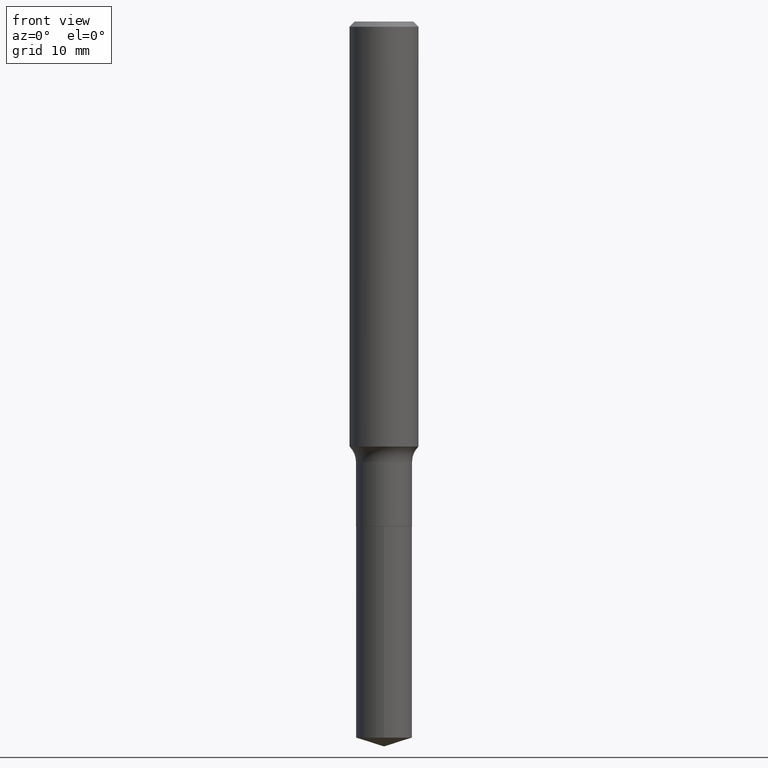
[diagram: clean part render]
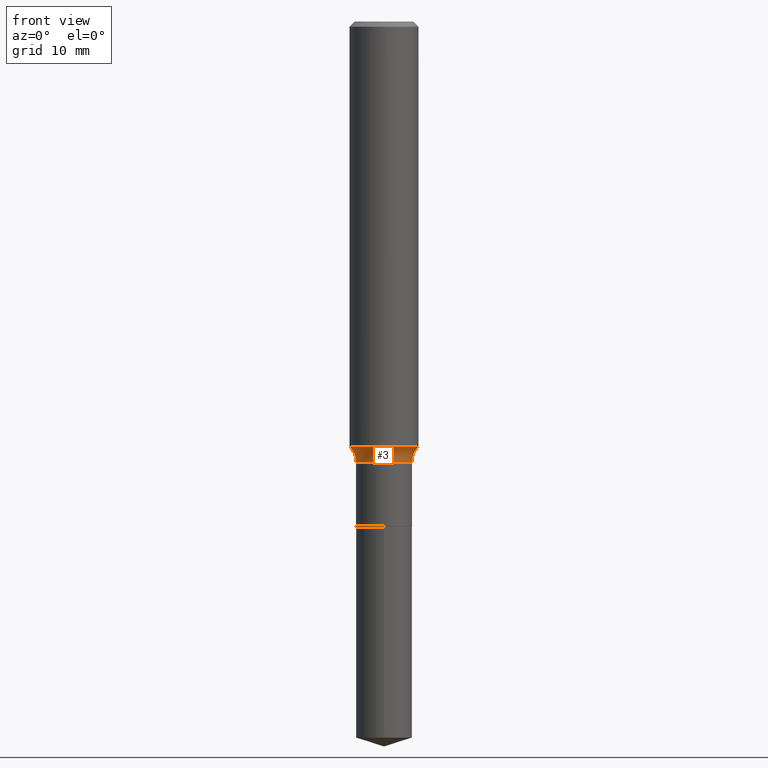
[diagram: same view with one face highlighted and labeled with its STEP entity id]
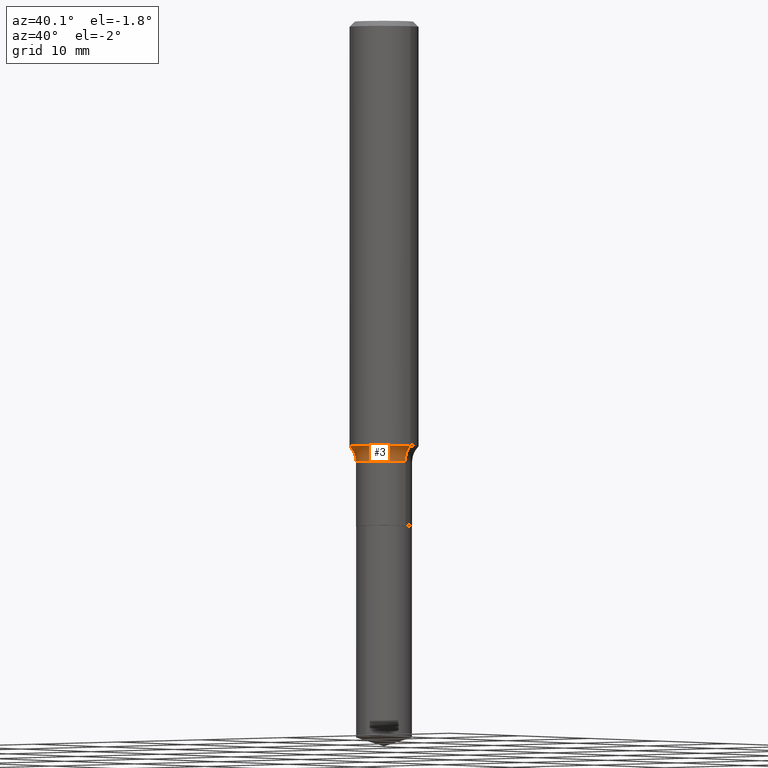
[diagram: same view with one face highlighted and labeled with its STEP entity id]
A machine part, front view. The second image highlights one B-rep face of the part: STEP entity #3.
A second angle (auxiliary view) of the same face is appended — the face is thin or edge-on in the first view.
In plain terms, the highlighted toroidal blend (fillet) surface has major radius 4.5606 mm and minor (blend) radius 1.9812 mm.
Its self-contained STEP definition (entity closure, byte-faithful):
#3 = ADVANCED_FACE ( 'NONE', ( #295 ), #405, .F. ) ;
#8 = DIRECTION ( 'NONE',  ( 1.000000000000000000, -6.982962677686267499E-15, 0.000000000000000000 ) ) ;
#16 = DIRECTION ( 'NONE',  ( 1.000000000000000000, -6.982962677686270655E-15, 0.000000000000000000 ) ) ;
#33 = CARTESIAN_POINT ( 'NONE',  ( -0.1795499999999999596, -4.291387512728136757E-15, -1.594500000000000250 ) ) ;
#58 = DIRECTION ( 'NONE',  ( -2.445468806185136597E-29, 3.491481338843145583E-15, 1.000000000000000000 ) ) ;
#65 = AXIS2_PLACEMENT_3D ( 'NONE', #33, #451, #179 ) ;
#66 = CARTESIAN_POINT ( 'NONE',  ( -0.1250000000000002220, -4.484331131856369405E-15, -1.538747892416519214 ) ) ;
#85 = ORIENTED_EDGE ( 'NONE', *, *, #138, .T. ) ;
#87 = CARTESIAN_POINT ( 'NONE',  ( 0.1015499999999999736, -6.276286854704436544E-15, -1.594500000000000250 ) ) ;
#95 = CARTESIAN_POINT ( 'NONE',  ( 0.1795499999999999596, -6.820957943563966168E-15, -1.594500000000000250 ) ) ;
#97 = CIRCLE ( 'NONE', #468, 0.07799999999999999989 ) ;
#118 = VERTEX_POINT ( 'NONE', #87 ) ;
#120 = VERTEX_POINT ( 'NONE', #386 ) ;
#138 = EDGE_CURVE ( 'NONE', #243, #118, #373, .T. ) ;
#151 = AXIS2_PLACEMENT_3D ( 'NONE', #168, #325, #291 ) ;
#161 = AXIS2_PLACEMENT_3D ( 'NONE', #259, #58, #361 ) ;
#168 = CARTESIAN_POINT ( 'NONE',  ( 3.899300011462200653E-29, -5.567166994785396551E-15, -1.594500000000000250 ) ) ;
#179 = DIRECTION ( 'NONE',  ( -1.000000000000000000, 7.105427357600997914E-15, 0.000000000000000000 ) ) ;
#182 = CARTESIAN_POINT ( 'NONE',  ( 3.762959971487720455E-29, -5.372509551556497004E-15, -1.538747892416519214 ) ) ;
#219 = EDGE_CURVE ( 'NONE', #427, #120, #368, .T. ) ;
#223 = AXIS2_PLACEMENT_3D ( 'NONE', #182, #302, #8 ) ;
#243 = VERTEX_POINT ( 'NONE', #285 ) ;
#259 = CARTESIAN_POINT ( 'NONE',  ( 3.899300011462200653E-29, -5.567166994785396551E-15, -1.594500000000000250 ) ) ;
#285 = CARTESIAN_POINT ( 'NONE',  ( -0.1015499999999999736, -5.252542996663183258E-15, -1.594500000000000250 ) ) ;
#291 = DIRECTION ( 'NONE',  ( 1.000000000000000000, -6.982962677686266711E-15, 0.000000000000000000 ) ) ;
#295 = FACE_OUTER_BOUND ( 'NONE', #436, .T. ) ;
#302 = DIRECTION ( 'NONE',  ( -2.445468806185136597E-29, 3.491481338843145583E-15, 1.000000000000000000 ) ) ;
#314 = ORIENTED_EDGE ( 'NONE', *, *, #480, .T. ) ;
#325 = DIRECTION ( 'NONE',  ( -2.445468806185136597E-29, 3.491481338843145583E-15, 1.000000000000000000 ) ) ;
#332 = DIRECTION ( 'NONE',  ( -6.982962677686266711E-15, -1.000000000000000000, 3.491481338843145583E-15 ) ) ;
#361 = DIRECTION ( 'NONE',  ( 1.000000000000000000, -6.982962677686265133E-15, 4.883557194083112340E-29 ) ) ;
#368 = CIRCLE ( 'NONE', #223, 0.1250000000000001943 ) ;
#371 = EDGE_CURVE ( 'NONE', #120, #118, #97, .T. ) ;
#373 = CIRCLE ( 'NONE', #151, 0.1015499999999999736 ) ;
#386 = CARTESIAN_POINT ( 'NONE',  ( 0.1250000000000002220, -6.245379886267282709E-15, -1.538747892416519214 ) ) ;
#391 = ORIENTED_EDGE ( 'NONE', *, *, #371, .F. ) ;
#405 = TOROIDAL_SURFACE ( 'NONE', #161, 0.1795499999999999596, 0.07799999999999999989 ) ;
#406 = ORIENTED_EDGE ( 'NONE', *, *, #219, .F. ) ;
#427 = VERTEX_POINT ( 'NONE', #66 ) ;
#433 = CIRCLE ( 'NONE', #65, 0.07799999999999999989 ) ;
#436 = EDGE_LOOP ( 'NONE', ( #406, #314, #85, #391 ) ) ;
#451 = DIRECTION ( 'NONE',  ( 7.105427357601001859E-15, 1.000000000000000000, -3.491481338843145583E-15 ) ) ;
#468 = AXIS2_PLACEMENT_3D ( 'NONE', #95, #332, #16 ) ;
#480 = EDGE_CURVE ( 'NONE', #427, #243, #433, .T. ) ;